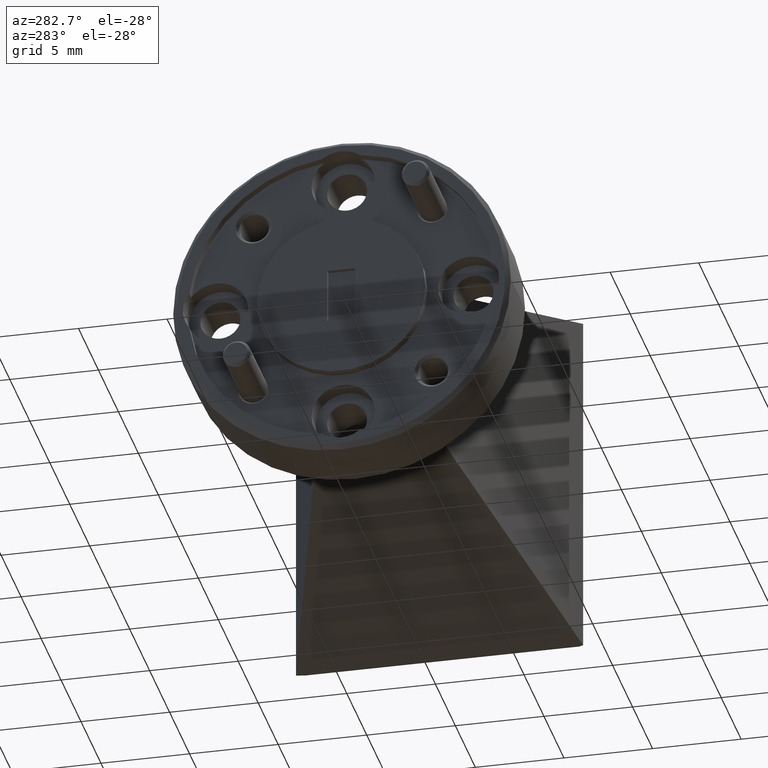
[diagram: clean part render]
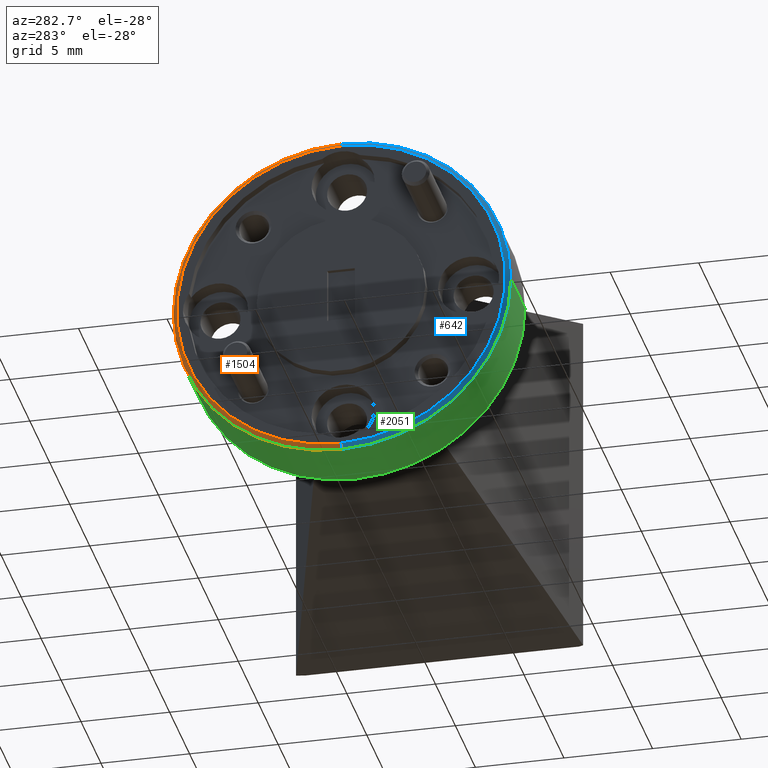
[diagram: same view with three faces highlighted in distinct colors, each labeled with its STEP entity id]
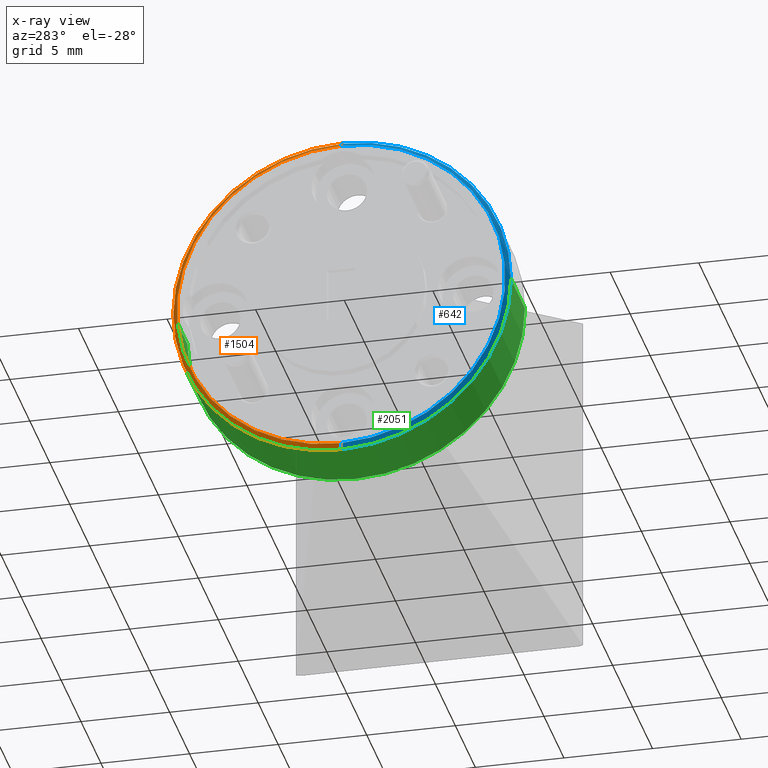
[diagram: x-ray of the same camera — body ghosted, the three highlighted faces saturated]
A machine part, auxiliary view with three faces highlighted in distinct colors.
The next image is the same camera in x-ray (body ghosted, the three faces saturated) — at least one of them is partly hidden behind the body in this view.
Their STEP definitions:

[orange] entity #1504 — the highlighted conical surface has half-angle 45 deg.
#1 = CIRCLE ( 'NONE', #1886, 0.3650000000000000466 ) ;
#16 = CARTESIAN_POINT ( 'NONE',  ( -2.213673718292400228, 0.1738685945160724500, 0.4211574694021060217 ) ) ;
#26 = DIRECTION ( 'NONE',  ( 1.000000000000000000, -0.000000000000000000, -0.000000000000000000 ) ) ;
#41 = VERTEX_POINT ( 'NONE', #924 ) ;
#168 = VERTEX_POINT ( 'NONE', #16 ) ;
#174 = LINE ( 'NONE', #2208, #505 ) ;
#229 = ORIENTED_EDGE ( 'NONE', *, *, #1661, .F. ) ;
#254 = CIRCLE ( 'NONE', #2128, 0.3749999999999999445 ) ;
#296 = VECTOR ( 'NONE', #2636, 39.37007874015748854 ) ;
#328 = CONICAL_SURFACE ( 'NONE', #1818, 0.3750000000000000555, 0.7853981633974380649 ) ;
#343 = DIRECTION ( 'NONE',  ( 0.000000000000000000, 0.000000000000000000, -1.000000000000000000 ) ) ;
#401 = EDGE_CURVE ( 'NONE', #2613, #1685, #1974, .T. ) ;
#428 = DIRECTION ( 'NONE',  ( 0.7071067811865546782, 0.000000000000000000, -0.7071067811865402453 ) ) ;
#454 = CARTESIAN_POINT ( 'NONE',  ( -2.203673718292400441, 0.1738685945160724777, 1.161157469402106068 ) ) ;
#474 = DIRECTION ( 'NONE',  ( -1.000000000000000000, -8.537024980200825762E-16, 0.000000000000000000 ) ) ;
#485 = ORIENTED_EDGE ( 'NONE', *, *, #401, .T. ) ;
#505 = VECTOR ( 'NONE', #428, 39.37007874015748854 ) ;
#578 = EDGE_CURVE ( 'NONE', #41, #1685, #254, .T. ) ;
#833 = VERTEX_POINT ( 'NONE', #2045 ) ;
#853 = DIRECTION ( 'NONE',  ( 0.000000000000000000, 0.000000000000000000, 1.000000000000000000 ) ) ;
#924 = CARTESIAN_POINT ( 'NONE',  ( -2.203673718292400441, 0.5488685945160725055, 0.7861574694021060683 ) ) ;
#949 = CIRCLE ( 'NONE', #1465, 0.3749999999999999445 ) ;
#973 = FACE_OUTER_BOUND ( 'NONE', #1178, .T. ) ;
#1028 = DIRECTION ( 'NONE',  ( 0.000000000000000000, 0.000000000000000000, 1.000000000000000000 ) ) ;
#1176 = DIRECTION ( 'NONE',  ( 1.000000000000000000, -0.000000000000000000, -0.000000000000000000 ) ) ;
#1178 = EDGE_LOOP ( 'NONE', ( #1281, #485, #1421, #1719, #229 ) ) ;
#1281 = ORIENTED_EDGE ( 'NONE', *, *, #2505, .F. ) ;
#1294 = DIRECTION ( 'NONE',  ( 7.484515051134966614E-16, -1.000000000000000000, 0.000000000000000000 ) ) ;
#1360 = CARTESIAN_POINT ( 'NONE',  ( -2.203673718292400441, 0.1738685945160724777, 1.161157469402106068 ) ) ;
#1421 = ORIENTED_EDGE ( 'NONE', *, *, #578, .F. ) ;
#1439 = DIRECTION ( 'NONE',  ( 1.000000000000000000, -0.000000000000000000, -0.000000000000000000 ) ) ;
#1465 = AXIS2_PLACEMENT_3D ( 'NONE', #2391, #1439, #1028 ) ;
#1504 = ADVANCED_FACE ( 'NONE', ( #973 ), #328, .T. ) ;
#1661 = EDGE_CURVE ( 'NONE', #168, #833, #174, .T. ) ;
#1685 = VERTEX_POINT ( 'NONE', #454 ) ;
#1719 = ORIENTED_EDGE ( 'NONE', *, *, #2325, .F. ) ;
#1818 = AXIS2_PLACEMENT_3D ( 'NONE', #2168, #1176, #343 ) ;
#1886 = AXIS2_PLACEMENT_3D ( 'NONE', #2297, #474, #1294 ) ;
#1887 = CARTESIAN_POINT ( 'NONE',  ( -2.203673718292400441, 0.1738685945160724500, 0.7861574694021060683 ) ) ;
#1974 = LINE ( 'NONE', #1360, #296 ) ;
#2045 = CARTESIAN_POINT ( 'NONE',  ( -2.203673718292400441, 0.1738685945160724500, 0.4111574694021060683 ) ) ;
#2128 = AXIS2_PLACEMENT_3D ( 'NONE', #1887, #26, #853 ) ;
#2168 = CARTESIAN_POINT ( 'NONE',  ( -2.203673718292400441, 0.1738685945160724500, 0.7861574694021060683 ) ) ;
#2208 = CARTESIAN_POINT ( 'NONE',  ( -2.203673718292400441, 0.1738685945160724500, 0.4111574694021060683 ) ) ;
#2297 = CARTESIAN_POINT ( 'NONE',  ( -2.213673718292400228, 0.1738685945160724500, 0.7861574694021060683 ) ) ;
#2320 = CARTESIAN_POINT ( 'NONE',  ( -2.213673718292400228, 0.1738685945160724777, 1.151157469402106059 ) ) ;
#2325 = EDGE_CURVE ( 'NONE', #833, #41, #949, .T. ) ;
#2391 = CARTESIAN_POINT ( 'NONE',  ( -2.203673718292400441, 0.1738685945160724500, 0.7861574694021060683 ) ) ;
#2505 = EDGE_CURVE ( 'NONE', #2613, #168, #1, .T. ) ;
#2613 = VERTEX_POINT ( 'NONE', #2320 ) ;
#2636 = DIRECTION ( 'NONE',  ( 0.7071067811865546782, 8.659560562354842879E-17, 0.7071067811865402453 ) ) ;

[blue] entity #642 — the highlighted conical surface has half-angle 45 deg.
#16 = CARTESIAN_POINT ( 'NONE',  ( -2.213673718292400228, 0.1738685945160724500, 0.4211574694021060217 ) ) ;
#32 = CONICAL_SURFACE ( 'NONE', #1409, 0.3750000000000000555, 0.7853981633974380649 ) ;
#39 = CARTESIAN_POINT ( 'NONE',  ( -2.203673718292400441, 0.1738685945160724500, 0.7861574694021060683 ) ) ;
#59 = DIRECTION ( 'NONE',  ( 0.000000000000000000, 0.000000000000000000, 1.000000000000000000 ) ) ;
#108 = AXIS2_PLACEMENT_3D ( 'NONE', #2315, #1934, #906 ) ;
#168 = VERTEX_POINT ( 'NONE', #16 ) ;
#174 = LINE ( 'NONE', #2208, #505 ) ;
#260 = DIRECTION ( 'NONE',  ( 1.000000000000000000, -0.000000000000000000, -0.000000000000000000 ) ) ;
#276 = EDGE_CURVE ( 'NONE', #981, #833, #1868, .T. ) ;
#296 = VECTOR ( 'NONE', #2636, 39.37007874015748854 ) ;
#348 = ORIENTED_EDGE ( 'NONE', *, *, #1661, .T. ) ;
#401 = EDGE_CURVE ( 'NONE', #2613, #1685, #1974, .T. ) ;
#428 = DIRECTION ( 'NONE',  ( 0.7071067811865546782, 0.000000000000000000, -0.7071067811865402453 ) ) ;
#454 = CARTESIAN_POINT ( 'NONE',  ( -2.203673718292400441, 0.1738685945160724777, 1.161157469402106068 ) ) ;
#505 = VECTOR ( 'NONE', #428, 39.37007874015748854 ) ;
#552 = EDGE_LOOP ( 'NONE', ( #2404, #1908, #348, #2305, #779 ) ) ;
#642 = ADVANCED_FACE ( 'NONE', ( #2095 ), #32, .T. ) ;
#665 = CARTESIAN_POINT ( 'NONE',  ( -2.203673718292400441, 0.1738685945160724500, 0.7861574694021060683 ) ) ;
#686 = CARTESIAN_POINT ( 'NONE',  ( -2.213673718292400228, 0.1738685945160724500, 0.7861574694021060683 ) ) ;
#779 = ORIENTED_EDGE ( 'NONE', *, *, #1935, .F. ) ;
#833 = VERTEX_POINT ( 'NONE', #2045 ) ;
#865 = DIRECTION ( 'NONE',  ( 1.000000000000000000, -0.000000000000000000, -0.000000000000000000 ) ) ;
#884 = AXIS2_PLACEMENT_3D ( 'NONE', #665, #260, #59 ) ;
#906 = DIRECTION ( 'NONE',  ( 0.000000000000000000, 9.106159978880879367E-16, 1.000000000000000000 ) ) ;
#968 = CIRCLE ( 'NONE', #884, 0.3749999999999999445 ) ;
#981 = VERTEX_POINT ( 'NONE', #2616 ) ;
#1166 = AXIS2_PLACEMENT_3D ( 'NONE', #686, #1873, #1256 ) ;
#1256 = DIRECTION ( 'NONE',  ( 7.484515051134966614E-16, -1.000000000000000000, 0.000000000000000000 ) ) ;
#1298 = CIRCLE ( 'NONE', #1166, 0.3650000000000000466 ) ;
#1360 = CARTESIAN_POINT ( 'NONE',  ( -2.203673718292400441, 0.1738685945160724777, 1.161157469402106068 ) ) ;
#1409 = AXIS2_PLACEMENT_3D ( 'NONE', #39, #865, #2547 ) ;
#1661 = EDGE_CURVE ( 'NONE', #168, #833, #174, .T. ) ;
#1685 = VERTEX_POINT ( 'NONE', #454 ) ;
#1868 = CIRCLE ( 'NONE', #108, 0.3749999999999999445 ) ;
#1873 = DIRECTION ( 'NONE',  ( -1.000000000000000000, -8.537024980200825762E-16, 0.000000000000000000 ) ) ;
#1908 = ORIENTED_EDGE ( 'NONE', *, *, #2394, .F. ) ;
#1934 = DIRECTION ( 'NONE',  ( 1.000000000000000000, -0.000000000000000000, -0.000000000000000000 ) ) ;
#1935 = EDGE_CURVE ( 'NONE', #1685, #981, #968, .T. ) ;
#1974 = LINE ( 'NONE', #1360, #296 ) ;
#2045 = CARTESIAN_POINT ( 'NONE',  ( -2.203673718292400441, 0.1738685945160724500, 0.4111574694021060683 ) ) ;
#2095 = FACE_OUTER_BOUND ( 'NONE', #552, .T. ) ;
#2208 = CARTESIAN_POINT ( 'NONE',  ( -2.203673718292400441, 0.1738685945160724500, 0.4111574694021060683 ) ) ;
#2305 = ORIENTED_EDGE ( 'NONE', *, *, #276, .F. ) ;
#2315 = CARTESIAN_POINT ( 'NONE',  ( -2.203673718292400441, 0.1738685945160724500, 0.7861574694021060683 ) ) ;
#2320 = CARTESIAN_POINT ( 'NONE',  ( -2.213673718292400228, 0.1738685945160724777, 1.151157469402106059 ) ) ;
#2394 = EDGE_CURVE ( 'NONE', #168, #2613, #1298, .T. ) ;
#2404 = ORIENTED_EDGE ( 'NONE', *, *, #401, .F. ) ;
#2547 = DIRECTION ( 'NONE',  ( 0.000000000000000000, 0.000000000000000000, -1.000000000000000000 ) ) ;
#2613 = VERTEX_POINT ( 'NONE', #2320 ) ;
#2616 = CARTESIAN_POINT ( 'NONE',  ( -2.203673718292400441, -0.2011314054839275778, 0.7861574694021060683 ) ) ;
#2636 = DIRECTION ( 'NONE',  ( 0.7071067811865546782, 8.659560562354842879E-17, 0.7071067811865402453 ) ) ;

[green] entity #2051 — the highlighted cylindrical surface (partial cylindrical patch) has radius 9.525 mm, axis along (1, 0, -0).
#41 = VERTEX_POINT ( 'NONE', #924 ) ;
#68 = EDGE_LOOP ( 'NONE', ( #550, #1301, #2209, #305, #1517, #1427 ) ) ;
#108 = AXIS2_PLACEMENT_3D ( 'NONE', #2315, #1934, #906 ) ;
#120 = CARTESIAN_POINT ( 'NONE',  ( -2.053673718292400530, 0.1738685945160725888, 0.7861574694021060683 ) ) ;
#276 = EDGE_CURVE ( 'NONE', #981, #833, #1868, .T. ) ;
#300 = DIRECTION ( 'NONE',  ( -1.000000000000000000, 0.000000000000000000, 0.000000000000000000 ) ) ;
#305 = ORIENTED_EDGE ( 'NONE', *, *, #1161, .T. ) ;
#322 = AXIS2_PLACEMENT_3D ( 'NONE', #120, #1376, #2576 ) ;
#389 = DIRECTION ( 'NONE',  ( 1.000000000000000000, 8.537024980200824776E-16, -0.000000000000000000 ) ) ;
#416 = AXIS2_PLACEMENT_3D ( 'NONE', #2058, #2645, #445 ) ;
#445 = DIRECTION ( 'NONE',  ( 0.000000000000000000, 0.000000000000000000, -1.000000000000000000 ) ) ;
#496 = CARTESIAN_POINT ( 'NONE',  ( -2.063673718292400761, 0.5488685945160726165, 0.7861574694021060683 ) ) ;
#541 = CIRCLE ( 'NONE', #416, 0.3750000000000000555 ) ;
#550 = ORIENTED_EDGE ( 'NONE', *, *, #1744, .F. ) ;
#629 = LINE ( 'NONE', #1827, #1317 ) ;
#706 = CARTESIAN_POINT ( 'NONE',  ( -2.063673718292400761, -0.2011314054839274390, 0.7861574694021060683 ) ) ;
#783 = EDGE_CURVE ( 'NONE', #1218, #2214, #1613, .T. ) ;
#833 = VERTEX_POINT ( 'NONE', #2045 ) ;
#906 = DIRECTION ( 'NONE',  ( 0.000000000000000000, 9.106159978880879367E-16, 1.000000000000000000 ) ) ;
#924 = CARTESIAN_POINT ( 'NONE',  ( -2.203673718292400441, 0.5488685945160725055, 0.7861574694021060683 ) ) ;
#934 = VERTEX_POINT ( 'NONE', #706 ) ;
#943 = CARTESIAN_POINT ( 'NONE',  ( -2.063673718292400761, 0.1738685945160725888, 0.7861574694021060683 ) ) ;
#949 = CIRCLE ( 'NONE', #1465, 0.3749999999999999445 ) ;
#981 = VERTEX_POINT ( 'NONE', #2616 ) ;
#1002 = CYLINDRICAL_SURFACE ( 'NONE', #322, 0.3750000000000000555 ) ;
#1028 = DIRECTION ( 'NONE',  ( 0.000000000000000000, 0.000000000000000000, 1.000000000000000000 ) ) ;
#1079 = CARTESIAN_POINT ( 'NONE',  ( -2.053673718292400530, -0.2011314054839274390, 0.7861574694021060683 ) ) ;
#1161 = EDGE_CURVE ( 'NONE', #41, #1218, #629, .T. ) ;
#1164 = EDGE_CURVE ( 'NONE', #2214, #934, #541, .T. ) ;
#1218 = VERTEX_POINT ( 'NONE', #496 ) ;
#1301 = ORIENTED_EDGE ( 'NONE', *, *, #276, .T. ) ;
#1317 = VECTOR ( 'NONE', #389, 39.37007874015748143 ) ;
#1376 = DIRECTION ( 'NONE',  ( 1.000000000000000000, 8.537024980200825762E-16, -0.000000000000000000 ) ) ;
#1427 = ORIENTED_EDGE ( 'NONE', *, *, #1164, .T. ) ;
#1439 = DIRECTION ( 'NONE',  ( 1.000000000000000000, -0.000000000000000000, -0.000000000000000000 ) ) ;
#1465 = AXIS2_PLACEMENT_3D ( 'NONE', #2391, #1439, #1028 ) ;
#1517 = ORIENTED_EDGE ( 'NONE', *, *, #783, .T. ) ;
#1613 = CIRCLE ( 'NONE', #1782, 0.3750000000000000555 ) ;
#1744 = EDGE_CURVE ( 'NONE', #981, #934, #2302, .T. ) ;
#1782 = AXIS2_PLACEMENT_3D ( 'NONE', #943, #300, #1923 ) ;
#1820 = VECTOR ( 'NONE', #1879, 39.37007874015748143 ) ;
#1826 = CARTESIAN_POINT ( 'NONE',  ( -2.063673718292400761, 0.1738685945160726165, 0.4111574694021060683 ) ) ;
#1827 = CARTESIAN_POINT ( 'NONE',  ( -2.053673718292400974, 0.5488685945160726165, 0.7861574694021060683 ) ) ;
#1868 = CIRCLE ( 'NONE', #108, 0.3749999999999999445 ) ;
#1879 = DIRECTION ( 'NONE',  ( 1.000000000000000000, 8.537024980200824776E-16, -0.000000000000000000 ) ) ;
#1923 = DIRECTION ( 'NONE',  ( 0.000000000000000000, 0.000000000000000000, -1.000000000000000000 ) ) ;
#1934 = DIRECTION ( 'NONE',  ( 1.000000000000000000, -0.000000000000000000, -0.000000000000000000 ) ) ;
#2045 = CARTESIAN_POINT ( 'NONE',  ( -2.203673718292400441, 0.1738685945160724500, 0.4111574694021060683 ) ) ;
#2051 = ADVANCED_FACE ( 'NONE', ( #2586 ), #1002, .T. ) ;
#2058 = CARTESIAN_POINT ( 'NONE',  ( -2.063673718292400761, 0.1738685945160725888, 0.7861574694021060683 ) ) ;
#2209 = ORIENTED_EDGE ( 'NONE', *, *, #2325, .T. ) ;
#2214 = VERTEX_POINT ( 'NONE', #1826 ) ;
#2302 = LINE ( 'NONE', #1079, #1820 ) ;
#2315 = CARTESIAN_POINT ( 'NONE',  ( -2.203673718292400441, 0.1738685945160724500, 0.7861574694021060683 ) ) ;
#2325 = EDGE_CURVE ( 'NONE', #833, #41, #949, .T. ) ;
#2391 = CARTESIAN_POINT ( 'NONE',  ( -2.203673718292400441, 0.1738685945160724500, 0.7861574694021060683 ) ) ;
#2576 = DIRECTION ( 'NONE',  ( -7.284927983104700930E-16, 1.000000000000000000, 0.000000000000000000 ) ) ;
#2586 = FACE_OUTER_BOUND ( 'NONE', #68, .T. ) ;
#2616 = CARTESIAN_POINT ( 'NONE',  ( -2.203673718292400441, -0.2011314054839275778, 0.7861574694021060683 ) ) ;
#2645 = DIRECTION ( 'NONE',  ( -1.000000000000000000, 0.000000000000000000, 0.000000000000000000 ) ) ;